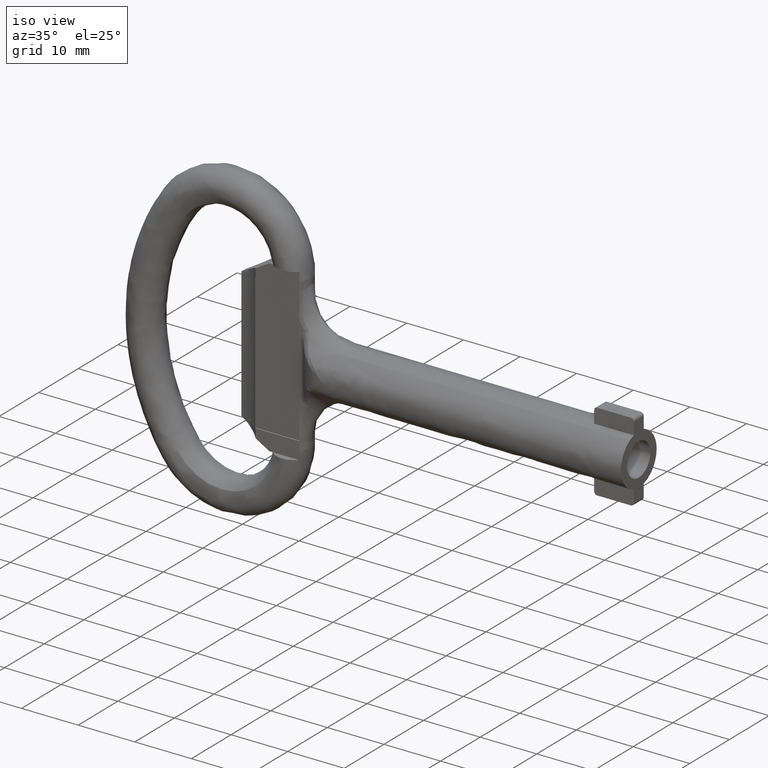
[diagram: clean part render]
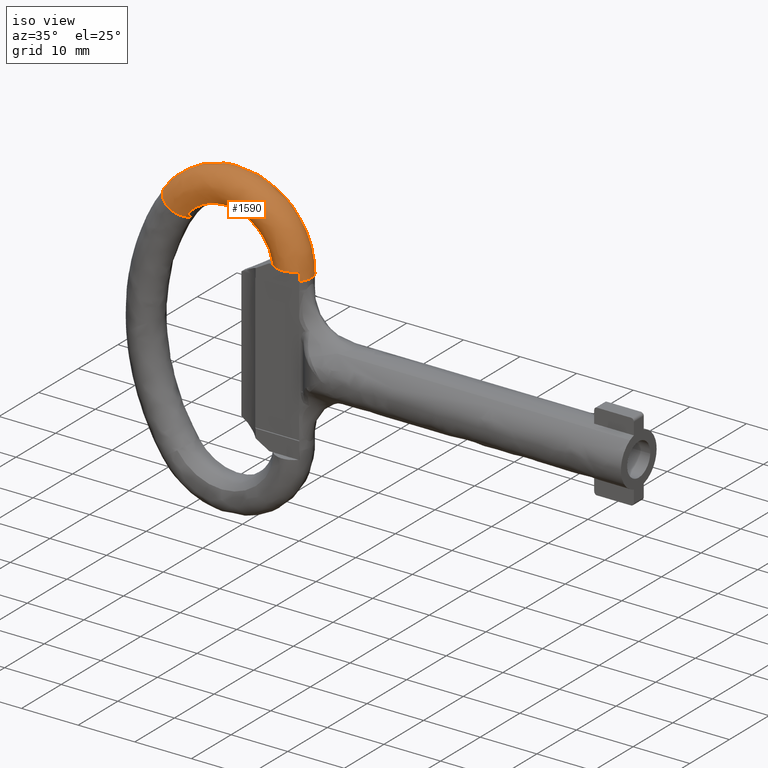
[diagram: same view with one face highlighted and labeled with its STEP entity id]
A machine part, iso view. The second image highlights one B-rep face of the part: STEP entity #1590.
In plain terms, the highlighted face is a freeform B-spline surface patch.
Its self-contained STEP definition (entity closure, byte-faithful):
#780=CARTESIAN_POINT('',(-83.418085488885040,0.037698120064748,21.374860092304061));
#781=VERTEX_POINT('',#780);
#795=CARTESIAN_POINT('',(-81.340089496880665,2.960297992715789,19.961118872910880));
#796=VERTEX_POINT('',#795);
#797=CARTESIAN_POINT('',(-81.340089496880665,2.960297992715789,19.961118872910877));
#798=CARTESIAN_POINT('',(-83.391955854220328,2.552490341484077,21.357083089043368));
#799=CARTESIAN_POINT('',(-83.418085488885040,0.037698120064748,21.374860092304058));
#807=(BOUNDED_CURVE()B_SPLINE_CURVE(2,(#797,#798,#799),.UNSPECIFIED.,.F.,.U.)B_SPLINE_CURVE_WITH_KNOTS((3,3),(0.777911817556902,0.997784295873105),.UNSPECIFIED.)CURVE()GEOMETRIC_REPRESENTATION_ITEM()RATIONAL_B_SPLINE_CURVE((0.941900437411775,0.741823727279868,0.994854295532100))REPRESENTATION_ITEM(''));
#808=EDGE_CURVE('',#796,#781,#807,.T.);
#885=CARTESIAN_POINT('',(-79.505287778213884,2.449017752010328,18.712832145155691));
#886=VERTEX_POINT('',#885);
#887=CARTESIAN_POINT('',(-79.505287778213884,2.449017752010329,18.712832145155691));
#888=CARTESIAN_POINT('',(-80.149160638258110,3.0,19.150883808827366));
#889=CARTESIAN_POINT('',(-80.937892601792598,3.0,19.687488735856899));
#890=CARTESIAN_POINT('',(-81.140330583854734,3.0,19.825215141803053));
#891=CARTESIAN_POINT('',(-81.340089496880665,2.960297992715790,19.961118872910873));
#899=(BOUNDED_CURVE()B_SPLINE_CURVE(2,(#887,#888,#889,#890,#891),.UNSPECIFIED.,.F.,.U.)B_SPLINE_CURVE_WITH_KNOTS((3,2,3),(0.650659173386938,0.750000000000000,0.777911817556902),.UNSPECIFIED.)CURVE()GEOMETRIC_REPRESENTATION_ITEM()RATIONAL_B_SPLINE_CURVE((0.859724235310494,0.883614982134845,1.0,0.967299271651301,0.941900437411775))REPRESENTATION_ITEM(''));
#900=EDGE_CURVE('',#886,#796,#899,.T.);
#917=CARTESIAN_POINT('',(-78.913053925969393,-1.732718110384072,18.309912499549949));
#918=VERTEX_POINT('',#917);
#932=CARTESIAN_POINT('',(-83.418281329947561,0.0,21.374993330588961));
#933=VERTEX_POINT('',#932);
#934=CARTESIAN_POINT('',(-83.418281329947561,0.0,21.374993330588961));
#935=CARTESIAN_POINT('',(-83.418281329947561,-3.0,21.374993330588957));
#936=CARTESIAN_POINT('',(-80.937892601792598,-3.0,19.687488735856899));
#937=CARTESIAN_POINT('',(-79.654377318345240,-3.000000000000000,18.814263537870552));
#938=CARTESIAN_POINT('',(-78.913053925969393,-1.732718110384073,18.309912499549952));
#946=(BOUNDED_CURVE()B_SPLINE_CURVE(2,(#934,#935,#936,#937,#938),.UNSPECIFIED.,.F.,.U.)B_SPLINE_CURVE_WITH_KNOTS((3,2,3),(0.0,0.250000000000000,0.400659173397157),.UNSPECIFIED.)CURVE()GEOMETRIC_REPRESENTATION_ITEM()RATIONAL_B_SPLINE_CURVE((1.0,0.707106781186548,1.0,0.823491799039731,0.859724235315409))REPRESENTATION_ITEM(''));
#947=EDGE_CURVE('',#933,#918,#946,.T.);
#949=CARTESIAN_POINT('',(-83.418085488885040,0.037698120064748,21.374860092304065));
#950=CARTESIAN_POINT('',(-83.418281329947561,0.018849804390408,21.374993330588957));
#951=CARTESIAN_POINT('',(-83.418281329947561,0.0,21.374993330588961));
#959=(BOUNDED_CURVE()B_SPLINE_CURVE(2,(#949,#950,#951),.UNSPECIFIED.,.F.,.U.)B_SPLINE_CURVE_WITH_KNOTS((3,3),(0.997784295873104,1.0),.UNSPECIFIED.)CURVE()GEOMETRIC_REPRESENTATION_ITEM()RATIONAL_B_SPLINE_CURVE((0.994854295532099,0.997404141145341,1.0))REPRESENTATION_ITEM(''));
#960=EDGE_CURVE('',#781,#933,#959,.T.);
#1354=CARTESIAN_POINT('',(-62.695218522669478,2.411757829312596,12.393451110842735));
#1355=CARTESIAN_POINT('',(-61.773016548050180,2.411757829312596,20.017509903070042));
#1356=CARTESIAN_POINT('',(-69.106023698619481,2.411757829312597,22.298679576511795));
#1357=CARTESIAN_POINT('',(-76.480623387770947,2.411757829312597,24.592787957867905));
#1358=CARTESIAN_POINT('',(-80.028145031414653,2.411757829312596,17.732558805097490));
#1359=CARTESIAN_POINT('',(-62.669194483868715,2.430304449715791,12.390303257366826));
#1360=CARTESIAN_POINT('',(-61.744369027233951,2.430304449715790,20.036050987242255));
#1361=CARTESIAN_POINT('',(-69.098237131161000,2.430304449715789,22.323710136717736));
#1362=CARTESIAN_POINT('',(-76.493816096206970,2.430304449715789,24.624344802169674));
#1363=CARTESIAN_POINT('',(-80.051429736493319,2.430304449715790,17.744599655831912));
#1364=CARTESIAN_POINT('',(-60.211640598031352,4.181735862418353,12.093038885722288));
#1365=CARTESIAN_POINT('',(-59.039069260329953,4.181735862418353,21.786959591549028));
#1366=CARTESIAN_POINT('',(-68.362920477918976,4.181735862418354,24.687445872350740));
#1367=CARTESIAN_POINT('',(-77.739656226170496,4.181735862418353,27.604383601387049));
#1368=CARTESIAN_POINT('',(-82.250297402068341,4.181735862418354,18.881665264199459));
#1369=CARTESIAN_POINT('',(-58.491460928218629,1.732718110266803,11.884966895272990));
#1370=CARTESIAN_POINT('',(-57.145478366313107,1.732718110266802,23.012518633076404));
#1371=CARTESIAN_POINT('',(-67.848231150018165,1.732718110266803,26.341956961884922));
#1372=CARTESIAN_POINT('',(-78.611689541798029,1.732718110266802,29.690279738683817));
#1373=CARTESIAN_POINT('',(-83.789408091249371,1.732718110266803,19.677561197155029));
#1374=CARTESIAN_POINT('',(-56.771281258405907,-0.716299641884748,11.676894904823691));
#1375=CARTESIAN_POINT('',(-55.251887472296268,-0.716299641884748,24.238077674603780));
#1376=CARTESIAN_POINT('',(-67.333541822117326,-0.716299641884748,27.996468051419093));
#1377=CARTESIAN_POINT('',(-79.483722857425562,-0.716299641884748,31.776175875980602));
#1378=CARTESIAN_POINT('',(-85.328518780430429,-0.716299641884748,20.473457130110582));
#1379=CARTESIAN_POINT('',(-59.202577222417560,-2.449017752151551,11.970983132629760));
#1380=CARTESIAN_POINT('',(-57.928282257623295,-2.449017752151550,22.505876786746601));
#1381=CARTESIAN_POINT('',(-68.061001928526665,-2.449017752151551,25.657987830434450));
#1382=CARTESIAN_POINT('',(-78.251194001297577,-2.449017752151551,28.827977528473522));
#1383=CARTESIAN_POINT('',(-83.153145084041810,-2.449017752151551,19.348540585910989));
#1384=CARTESIAN_POINT('',(-61.633873186429192,-4.181735862418353,12.265071360435824));
#1385=CARTESIAN_POINT('',(-60.604677042950335,-4.181735862418353,20.773675898889422));
#1386=CARTESIAN_POINT('',(-68.788462034936003,-4.181735862418354,23.319507609449811));
#1387=CARTESIAN_POINT('',(-77.018665145169550,-4.181735862418353,25.879779180966459));
#1388=CARTESIAN_POINT('',(-80.977771387653192,-4.181735862418354,18.223624041711389));
#1389=CARTESIAN_POINT('',(-63.372410069560289,-1.706582967475822,12.475363829351004));
#1390=CARTESIAN_POINT('',(-62.518475740017756,-1.706582967475822,19.535038078933042));
#1391=CARTESIAN_POINT('',(-69.308643964540423,-1.706582967475821,21.647340100914072));
#1392=CARTESIAN_POINT('',(-76.137325765834504,-1.706582967475821,23.771623019891763));
#1393=CARTESIAN_POINT('',(-79.422235796040354,-1.706582967475822,17.419234559112795));
#1394=CARTESIAN_POINT('',(-63.390605706264502,-1.680677861118433,12.477564763598146));
#1395=CARTESIAN_POINT('',(-62.538505677924007,-1.680677861118432,19.522074417362951));
#1396=CARTESIAN_POINT('',(-69.314088221434289,-1.680677861118433,21.629839090271673));
#1397=CARTESIAN_POINT('',(-76.128101612286144,-1.680677861118432,23.749558924505088));
#1398=CARTESIAN_POINT('',(-79.405955462398836,-1.680677861118433,17.410815768038496));
#1406=(BOUNDED_SURFACE()B_SPLINE_SURFACE(2,2,((#1354,#1359,#1364,#1369,#1374,#1379,#1384,#1389,#1394),(#1355,#1360,#1365,#1370,#1375,#1380,#1385,#1390,#1395),(#1356,#1361,#1366,#1371,#1376,#1381,#1386,#1391,#1396),(#1357,#1362,#1367,#1372,#1377,#1382,#1387,#1392,#1397),(#1358,#1363,#1368,#1373,#1378,#1383,#1388,#1393,#1398)),.UNSPECIFIED.,.F.,.F.,.U.)B_SPLINE_SURFACE_WITH_KNOTS((3,2,3),(3,1,2,2,1,3),(0.0,20.214266622647070,40.515341593583308),(0.0,0.076258850163123,5.046821598640294,10.017384347117471,14.987947095594640,15.063296095843601),.UNSPECIFIED.)GEOMETRIC_REPRESENTATION_ITEM()RATIONAL_B_SPLINE_SURFACE(((0.982835184520983,0.978458058495352,0.688779232773855,0.974080932469721,0.688779232773855,0.974080932469721,0.688779232773855,0.978405834684867,0.982730736900014),(0.764981854507818,0.761574953699588,0.536105771478480,0.758168052891357,0.536105771478480,0.758168052891357,0.536105771478480,0.761534305717074,0.764900558542791),(1.008987191679305,1.004493595839653,0.707106781186548,1.0,0.707106781186548,1.0,0.707106781186548,1.004439982419306,1.008879964838611),(0.763933995553100,0.760531761458856,0.535371423036083,0.757129527364612,0.535371423036083,0.757129527364612,0.535371423036083,0.760491169155248,0.763852810945884),(0.984714805127139,0.980329308078164,0.690096486835781,0.975943811029188,0.690096486835781,0.975943811029188,0.690096486835781,0.980276984392388,0.984610157755587)))REPRESENTATION_ITEM('')SURFACE());
#1407=CARTESIAN_POINT('',(-62.698080385764101,2.449018059786281,15.000000704117751));
#1408=VERTEX_POINT('',#1407);
#1409=CARTESIAN_POINT('',(-58.692362889296000,1.999999588592305,15.000000712461700));
#1410=VERTEX_POINT('',#1409);
#1411=CARTESIAN_POINT('',(-62.698080385764101,2.449018059786281,15.000000704117751));
#1412=CARTESIAN_POINT('',(-62.624268195335617,2.500556082664093,15.000000667750401));
#1413=CARTESIAN_POINT('',(-62.547969726575161,2.548972948334232,15.000000666884681));
#1414=CARTESIAN_POINT('',(-62.422876260040162,2.620714617958894,15.000000665601901));
#1415=CARTESIAN_POINT('',(-62.375688594552670,2.646156402657240,15.000000665146990));
#1416=CARTESIAN_POINT('',(-62.280665346196933,2.694227717814866,15.000000664287450));
#1417=CARTESIAN_POINT('',(-62.232698549454227,2.716937295035971,15.000000663881380));
#1418=CARTESIAN_POINT('',(-61.990629717898962,2.823974270655236,15.000000661967510));
#1419=CARTESIAN_POINT('',(-61.789896289617438,2.888982049852217,15.000000660805130));
#1420=CARTESIAN_POINT('',(-61.478065860506838,2.955232558574832,15.000000659620531));
#1421=CARTESIAN_POINT('',(-61.371934250674862,2.972045294169884,15.000000659319920));
#1422=CARTESIAN_POINT('',(-61.160822411320652,2.994283161966781,15.000000658922300));
#1423=CARTESIAN_POINT('',(-60.949786083710158,3.005442102630377,15.000000658722760));
#1424=CARTESIAN_POINT('',(-60.738898192852382,2.994822709420856,15.000000658912651));
#1425=CARTESIAN_POINT('',(-60.580788805788693,2.978564041227868,15.000000659203360));
#1426=CARTESIAN_POINT('',(-60.528095117560959,2.971759351436186,15.000000659325030));
#1427=CARTESIAN_POINT('',(-60.422727008545309,2.955323092861775,15.000000659618919));
#1428=CARTESIAN_POINT('',(-60.369994296076761,2.945670121363627,15.000000659791519));
#1429=CARTESIAN_POINT('',(-60.109479424263512,2.890875380332358,15.000000660771279));
#1430=CARTESIAN_POINT('',(-59.908627010603922,2.826045981680986,15.000000661930461));
#1431=CARTESIAN_POINT('',(-59.618500462029033,2.697831223750075,15.000000664223011));
#1432=CARTESIAN_POINT('',(-59.523496506199997,2.649792274567323,15.000000665081970));
#1433=CARTESIAN_POINT('',(-59.338099477052239,2.543274037642648,15.000000666986571));
#1434=CARTESIAN_POINT('',(-59.249029114772071,2.485578632131733,15.000000668018201));
#1435=CARTESIAN_POINT('',(-58.992348440345623,2.299616458796005,15.000000671343310));
#1436=CARTESIAN_POINT('',(-58.835152346653423,2.158615809174419,15.000000673864481));
#1437=CARTESIAN_POINT('',(-58.692362889296000,1.999999588592305,15.000000712461700));
#1438=B_SPLINE_CURVE_WITH_KNOTS('',3,(#1411,#1412,#1413,#1414,#1415,#1416,#1417,#1418,#1419,#1420,#1421,#1422,#1423,#1424,#1425,#1426,#1427,#1428,#1429,#1430,#1431,#1432,#1433,#1434,#1435,#1436,#1437),.UNSPECIFIED.,.F.,.U.,(4,2,2,2,2,2,1,2,2,2,2,2,2,4),(0.134222441785415,0.187499999999989,0.218749999999986,0.249999999999983,0.374999999999975,0.437499999999971,0.499999999999967,0.562499999999963,0.593749999999963,0.624999999999963,0.749999999999972,0.812499999999978,0.874999999999984,1.0),.UNSPECIFIED.);
#1439=EDGE_CURVE('',#1408,#1410,#1438,.T.);
#1440=ORIENTED_EDGE('',*,*,#1439,.F.);
#1441=CARTESIAN_POINT('',(-62.698080385764094,2.449018059786281,15.000000704117753));
#1442=CARTESIAN_POINT('',(-63.624602602839836,2.449017752151552,20.648658162620606));
#1443=CARTESIAN_POINT('',(-69.090380584328315,2.449017752151551,22.348965651366111));
#1444=CARTESIAN_POINT('',(-75.644386088423687,2.449017752151552,24.387801600728572));
#1445=CARTESIAN_POINT('',(-79.505287778213884,2.449017752010328,18.712832145155691));
#1453=(BOUNDED_CURVE()B_SPLINE_CURVE(2,(#1441,#1442,#1443,#1444,#1445),.UNSPECIFIED.,.F.,.U.)B_SPLINE_CURVE_WITH_KNOTS((3,2,3),(-3.496514792611731,-2.0,-0.271337153541987),.UNSPECIFIED.)CURVE()GEOMETRIC_REPRESENTATION_ITEM()RATIONAL_B_SPLINE_CURVE((0.903734287427708,0.808801309036164,1.0,0.779141459214201,0.940072872207744))REPRESENTATION_ITEM(''));
#1454=EDGE_CURVE('',#1408,#886,#1453,.T.);
#1455=ORIENTED_EDGE('',*,*,#1454,.T.);
#1456=ORIENTED_EDGE('',*,*,#900,.T.);
#1457=ORIENTED_EDGE('',*,*,#808,.T.);
#1458=ORIENTED_EDGE('',*,*,#960,.T.);
#1459=ORIENTED_EDGE('',*,*,#947,.T.);
#1460=CARTESIAN_POINT('',(-63.424764904987839,-1.732713678584647,14.999999613856209));
#1461=VERTEX_POINT('',#1460);
#1462=CARTESIAN_POINT('',(-63.424764904987839,-1.732713678584647,14.999999613856211));
#1463=CARTESIAN_POINT('',(-64.337093690055241,-1.732714227653868,20.120145881805083));
#1464=CARTESIAN_POINT('',(-69.303147976763370,-1.732715676913612,21.664997123249851));
#1465=CARTESIAN_POINT('',(-75.350573911263837,-1.732717441753556,23.546243868269059));
#1466=CARTESIAN_POINT('',(-78.913053925969393,-1.732718110384073,18.309912499549952));
#1474=(BOUNDED_CURVE()B_SPLINE_CURVE(2,(#1462,#1463,#1464,#1465,#1466),.UNSPECIFIED.,.F.,.U.)B_SPLINE_CURVE_WITH_KNOTS((3,2,3),(-3.477918911663967,-2.0,-0.271337153494757),.UNSPECIFIED.)CURVE()GEOMETRIC_REPRESENTATION_ITEM()RATIONAL_B_SPLINE_CURVE((0.901419170370234,0.811177168006677,1.0,0.779141459208167,0.940072872216538))REPRESENTATION_ITEM(''));
#1475=EDGE_CURVE('',#1461,#918,#1474,.T.);
#1476=ORIENTED_EDGE('',*,*,#1475,.F.);
#1477=CARTESIAN_POINT('',(-63.208550391848703,-2.000000601397505,15.000000712461700));
#1478=VERTEX_POINT('',#1477);
#1479=CARTESIAN_POINT('',(-63.208550391848703,-2.000000601397505,15.000000712461700));
#1480=CARTESIAN_POINT('',(-63.253740588062072,-1.950217665558457,15.000000497956380));
#1481=CARTESIAN_POINT('',(-63.297396278433908,-1.898779748600828,15.000000282423120));
#1482=CARTESIAN_POINT('',(-63.367342917473401,-1.810519259036333,14.999999922566570));
#1483=CARTESIAN_POINT('',(-63.394519368694553,-1.774608765766061,14.999999778729780));
#1484=CARTESIAN_POINT('',(-63.422108190695177,-1.736405712670316,14.999999628368339));
#1485=CARTESIAN_POINT('',(-63.423437654631627,-1.734560363198379,14.999999621111710));
#1486=CARTESIAN_POINT('',(-63.424764904987839,-1.732713678584647,14.999999613856209));
#1487=B_SPLINE_CURVE_WITH_KNOTS('',3,(#1479,#1480,#1481,#1482,#1483,#1484,#1485,#1486),.UNSPECIFIED.,.F.,.U.,(4,2,2,4),(0.925690802065915,0.937499999999994,0.945312499999995,0.945708724960040),.UNSPECIFIED.);
#1488=EDGE_CURVE('',#1478,#1461,#1487,.T.);
#1489=ORIENTED_EDGE('',*,*,#1488,.F.);
#1490=CARTESIAN_POINT('',(-58.692362651926800,-2.000000601397505,15.000000712461700));
#1491=VERTEX_POINT('',#1490);
#1492=CARTESIAN_POINT('',(-58.692362651926757,-2.000000601397534,15.000000712461700));
#1493=CARTESIAN_POINT('',(-58.762958009367807,-2.078420080587282,15.000000712461700));
#1494=CARTESIAN_POINT('',(-58.837860777326469,-2.153338462880583,15.000000712461700));
#1495=CARTESIAN_POINT('',(-58.956878863570353,-2.260299538491772,15.000000712461700));
#1496=CARTESIAN_POINT('',(-58.997572527080123,-2.294954120954900,15.000000712461700));
#1497=CARTESIAN_POINT('',(-59.080237057467848,-2.361665180364089,15.000000712461700));
#1498=CARTESIAN_POINT('',(-59.122312121988926,-2.393816810070389,15.000000712461700));
#1499=CARTESIAN_POINT('',(-59.336338986684872,-2.548656682486734,15.000000712461700));
#1500=CARTESIAN_POINT('',(-59.519125864946602,-2.653783855857542,15.000000712461700));
#1501=CARTESIAN_POINT('',(-59.762285817578913,-2.761405962678216,15.000000712461700));
#1502=CARTESIAN_POINT('',(-59.811801851088532,-2.781778639661392,15.000000712461700));
#1503=CARTESIAN_POINT('',(-59.911335083094457,-2.819690621676652,15.000000712461700));
#1504=CARTESIAN_POINT('',(-59.961407856652002,-2.837264079953879,15.000000712461690));
#1505=CARTESIAN_POINT('',(-60.112526341862612,-2.885919531618168,15.000000712461700));
#1506=CARTESIAN_POINT('',(-60.316413296262922,-2.939975338570685,15.000000712461700));
#1507=CARTESIAN_POINT('',(-60.525018805515963,-2.972723304424441,15.000000712461700));
#1508=CARTESIAN_POINT('',(-60.736025051513003,-2.994630129577766,15.000000712461700));
#1509=CARTESIAN_POINT('',(-60.843213971426593,-3.000115333973766,15.000000712461700));
#1510=CARTESIAN_POINT('',(-61.161444990248462,-2.999763734734806,15.000000712461700));
#1511=CARTESIAN_POINT('',(-61.371030187953181,-2.977686145519506,15.000000712461690));
#1512=CARTESIAN_POINT('',(-61.629832635534477,-2.923057011224564,15.000000712461700));
#1513=CARTESIAN_POINT('',(-61.681432544044902,-2.910765729247093,15.000000712461700));
#1514=CARTESIAN_POINT('',(-61.784305317732027,-2.883402244897988,15.000000712461700));
#1515=CARTESIAN_POINT('',(-61.835658720437927,-2.868298220739196,15.000000712461700));
#1516=CARTESIAN_POINT('',(-61.987810796026061,-2.819190430509659,15.000000712461700));
#1517=CARTESIAN_POINT('',(-62.087120085326667,-2.781310065959366,15.000000712461700));
#1518=CARTESIAN_POINT('',(-62.232921226883718,-2.716838087462315,15.000000712461700));
#1519=CARTESIAN_POINT('',(-62.280993374605352,-2.694069526459589,15.000000712461700));
#1520=CARTESIAN_POINT('',(-62.376072103273103,-2.645954583857916,15.000000712461700));
#1521=CARTESIAN_POINT('',(-62.423182908342753,-2.620544509676718,15.000000712461700));
#1522=CARTESIAN_POINT('',(-62.561752295514687,-2.541057036917929,15.000000712461700));
#1523=CARTESIAN_POINT('',(-62.650661545889307,-2.483658800920267,15.000000712461700));
#1524=CARTESIAN_POINT('',(-62.907255563309057,-2.298596428556075,15.000000712461700));
#1525=CARTESIAN_POINT('',(-63.064922484463601,-2.158211780440621,15.000000712461700));
#1526=CARTESIAN_POINT('',(-63.208550391848703,-2.000000601397505,15.000000712461700));
#1527=B_SPLINE_CURVE_WITH_KNOTS('',3,(#1492,#1493,#1494,#1495,#1496,#1497,#1498,#1499,#1500,#1501,#1502,#1503,#1504,#1505,#1506,#1507,#1508,#1509,#1510,#1511,#1512,#1513,#1514,#1515,#1516,#1517,#1518,#1519,#1520,#1521,#1522,#1523,#1524,#1525,#1526),.UNSPECIFIED.,.F.,.U.,(4,2,2,2,2,2,2,1,2,2,2,2,2,2,2,2,2,4),(0.0,0.062499999999997,0.093749999999997,0.124999999999997,0.249999999999996,0.281249999999998,0.312500000000001,0.375000000000002,0.437500000000004,0.500000000000005,0.625000000000012,0.656250000000010,0.687500000000009,0.750000000000006,0.781250000000007,0.812500000000007,0.875000000000005,1.0),.UNSPECIFIED.);
#1528=EDGE_CURVE('',#1491,#1478,#1527,.T.);
#1529=ORIENTED_EDGE('',*,*,#1528,.F.);
#1530=CARTESIAN_POINT('',(-58.600002783350703,-1.892399986255565,15.000000712461700));
#1531=VERTEX_POINT('',#1530);
#1532=CARTESIAN_POINT('',(-58.600002783350703,-1.892399986255565,15.000000712461700));
#1533=CARTESIAN_POINT('',(-58.617949909581426,-1.914332612468862,15.000000712461700));
#1534=CARTESIAN_POINT('',(-58.636219222993702,-1.936026089969215,15.000000712461700));
#1535=CARTESIAN_POINT('',(-58.667184051344123,-1.971760685737940,15.000000712461700));
#1536=CARTESIAN_POINT('',(-58.679701215920957,-1.985934187483402,15.000000712461700));
#1537=CARTESIAN_POINT('',(-58.692362651926800,-2.000000601397505,15.000000712461700));
#1538=B_SPLINE_CURVE_WITH_KNOTS('',3,(#1532,#1533,#1534,#1535,#1536,#1537),.UNSPECIFIED.,.F.,.U.,(4,2,4),(0.620011809984740,0.625000000000006,0.628320053466063),.UNSPECIFIED.);
#1539=EDGE_CURVE('',#1531,#1491,#1538,.T.);
#1540=ORIENTED_EDGE('',*,*,#1539,.F.);
#1541=CARTESIAN_POINT('',(-58.600002783350597,-1.992048014443970,13.499979257079699));
#1542=VERTEX_POINT('',#1541);
#1543=CARTESIAN_POINT('',(-58.600002783350597,-1.992048014443970,13.499979257079699));
#1544=CARTESIAN_POINT('',(-58.600002783350597,-1.992069564368441,13.717681700664571));
#1545=CARTESIAN_POINT('',(-58.600002783350611,-1.986038970606707,13.934664696004310));
#1546=CARTESIAN_POINT('',(-58.600002783350646,-1.957914919533799,14.435277154061660));
#1547=CARTESIAN_POINT('',(-58.600002783350682,-1.931386540748501,14.718379415734930));
#1548=CARTESIAN_POINT('',(-58.600002783350703,-1.892399986255565,15.000000712461700));
#1549=B_SPLINE_CURVE_WITH_KNOTS('',3,(#1543,#1544,#1545,#1546,#1547,#1548),.UNSPECIFIED.,.F.,.U.,(4,2,4),(0.889968241321914,0.937500000000000,1.0),.UNSPECIFIED.);
#1550=EDGE_CURVE('',#1542,#1531,#1549,.T.);
#1551=ORIENTED_EDGE('',*,*,#1550,.F.);
#1552=CARTESIAN_POINT('',(-58.600002783350597,1.992048014443970,13.499979257079699));
#1553=VERTEX_POINT('',#1552);
#1554=CARTESIAN_POINT('',(-58.600002783350583,1.992048014443992,13.499979257079721));
#1555=CARTESIAN_POINT('',(-56.830951981149653,4.336809E-016,13.499979257079724));
#1556=CARTESIAN_POINT('',(-58.600002783350583,-1.992048014443991,13.499979257079721));
#1564=(BOUNDED_CURVE()B_SPLINE_CURVE(2,(#1554,#1555,#1556),.UNSPECIFIED.,.F.,.U.)CURVE()GEOMETRIC_REPRESENTATION_ITEM()QUASI_UNIFORM_CURVE()RATIONAL_B_SPLINE_CURVE((1.0,0.747718359644842,1.0))REPRESENTATION_ITEM(''));
#1565=EDGE_CURVE('',#1553,#1542,#1564,.T.);
#1566=ORIENTED_EDGE('',*,*,#1565,.F.);
#1567=CARTESIAN_POINT('',(-58.600002783350703,1.892399986255565,15.000000712461700));
#1568=VERTEX_POINT('',#1567);
#1569=CARTESIAN_POINT('',(-58.600002783350703,1.892399986255565,15.000000712461700));
#1570=CARTESIAN_POINT('',(-58.600002783350689,1.931286359453254,14.719119334202910));
#1571=CARTESIAN_POINT('',(-58.600002783350668,1.957857334020362,14.436158913957120));
#1572=CARTESIAN_POINT('',(-58.600002783350646,1.981874550831301,14.009044358328911));
#1573=CARTESIAN_POINT('',(-58.600002783350618,1.987201168661942,13.866179080255129));
#1574=CARTESIAN_POINT('',(-58.600002783350597,1.991338718578450,13.649105822202729));
#1575=CARTESIAN_POINT('',(-58.600002783350597,1.992048198736612,13.574512244726311));
#1576=CARTESIAN_POINT('',(-58.600002783350597,1.992048014443970,13.499979257079699));
#1577=B_SPLINE_CURVE_WITH_KNOTS('',3,(#1569,#1570,#1571,#1572,#1573,#1574,#1575,#1576),.UNSPECIFIED.,.F.,.U.,(4,2,2,4),(0.0,0.062500000000000,0.093750000000000,0.110130937656098),.UNSPECIFIED.);
#1578=EDGE_CURVE('',#1568,#1553,#1577,.T.);
#1579=ORIENTED_EDGE('',*,*,#1578,.F.);
#1580=CARTESIAN_POINT('',(-58.692362889296000,1.999999588592305,15.000000712461700));
#1581=CARTESIAN_POINT('',(-58.681016719044322,1.987395528001520,15.000000712461700));
#1582=CARTESIAN_POINT('',(-58.649689591085313,1.951996972919350,15.000000712461700));
#1583=CARTESIAN_POINT('',(-58.619204519673623,1.915869243402794,15.000000712461700));
#1584=CARTESIAN_POINT('',(-58.600002783350703,1.892399986255565,15.000000712461700));
#1585=B_SPLINE_CURVE_WITH_KNOTS('',3,(#1580,#1581,#1582,#1583,#1584),.UNSPECIFIED.,.F.,.U.,(4,1,4),(0.372011210796780,0.374999999999994,0.380343083566111),.UNSPECIFIED.);
#1586=EDGE_CURVE('',#1410,#1568,#1585,.T.);
#1587=ORIENTED_EDGE('',*,*,#1586,.F.);
#1588=EDGE_LOOP('',(#1440,#1455,#1456,#1457,#1458,#1459,#1476,#1489,#1529,#1540,#1551,#1566,#1579,#1587));
#1589=FACE_OUTER_BOUND('',#1588,.T.);
#1590=ADVANCED_FACE('',(#1589),#1406,.T.);